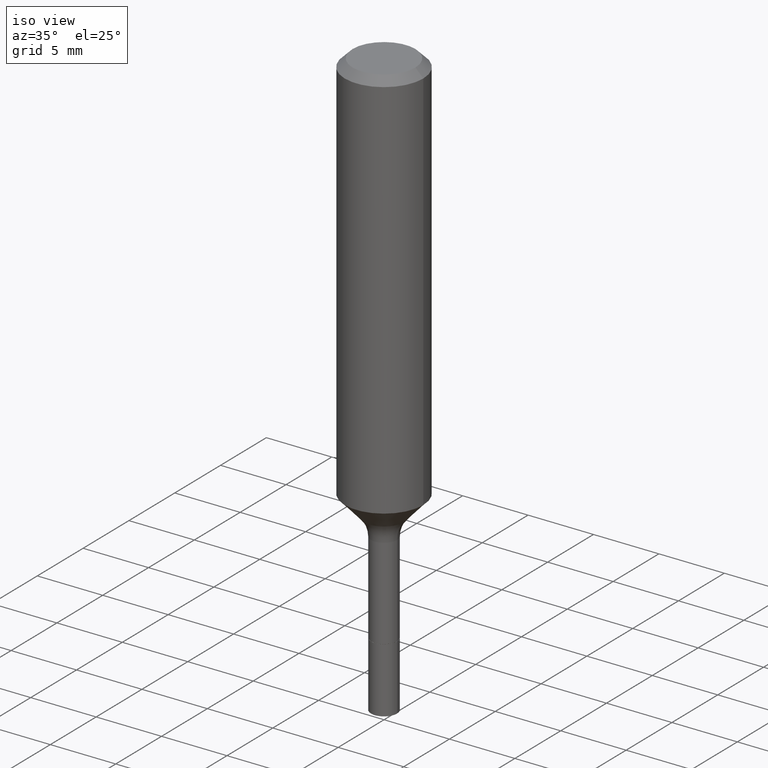
[diagram: clean part render]
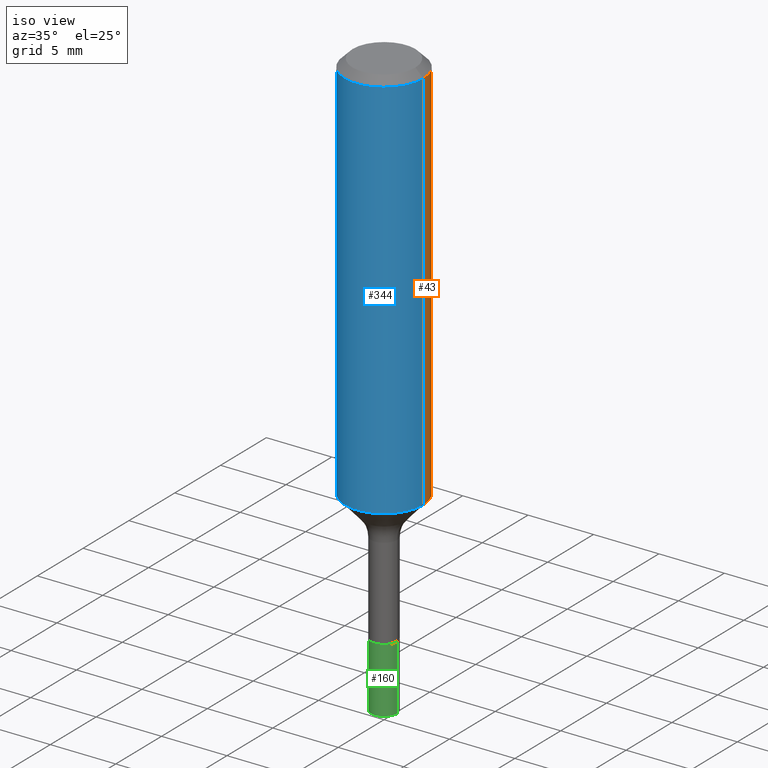
[diagram: same view with three faces highlighted in distinct colors, each labeled with its STEP entity id]
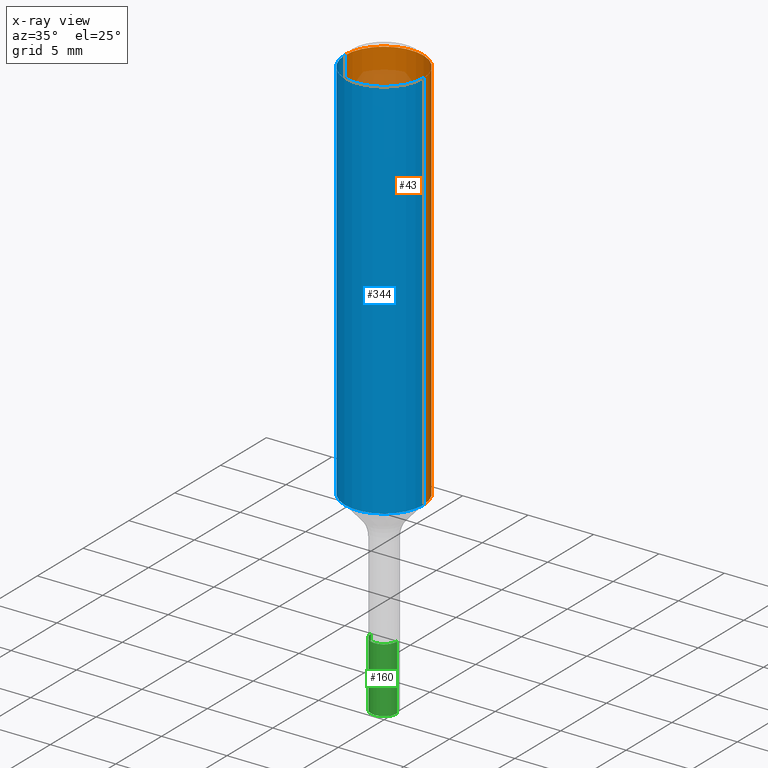
[diagram: x-ray of the same camera — body ghosted, the three highlighted faces saturated]
A machine part, iso view with three faces highlighted in distinct colors.
The next image is the same camera in x-ray (body ghosted, the three faces saturated) — at least one of them is partly hidden behind the body in this view.
Their STEP definitions:

[orange] entity #43 — the highlighted cylindrical surface (partial cylindrical patch) has radius 2.9997 mm, axis along (-0, 0, 1).
#5 = CARTESIAN_POINT ( 'NONE',  ( 0.000000000000000000, 0.000000000000000000, 0.000000000000000000 ) ) ;
#36 = CIRCLE ( 'NONE', #337, 0.1181000000000001493 ) ;
#43 = ADVANCED_FACE ( 'NONE', ( #382 ), #130, .T. ) ;
#44 = VERTEX_POINT ( 'NONE', #330 ) ;
#55 = AXIS2_PLACEMENT_3D ( 'NONE', #5, #446, #209 ) ;
#57 = DIRECTION ( 'NONE',  ( 1.000000000000000000, -6.982962677686264344E-15, 0.000000000000000000 ) ) ;
#78 = CARTESIAN_POINT ( 'NONE',  ( 0.1180999999999999966, -9.071566814582237199E-16, -0.02362000000000013741 ) ) ;
#88 = ORIENTED_EDGE ( 'NONE', *, *, #423, .F. ) ;
#100 = CARTESIAN_POINT ( 'NONE',  ( 2.894007928645242123E-29, -4.131876330531287042E-15, -1.183416415423353740 ) ) ;
#114 = EDGE_CURVE ( 'NONE', #411, #514, #163, .T. ) ;
#130 = CYLINDRICAL_SURFACE ( 'NONE', #55, 0.1181000000000000660 ) ;
#141 = EDGE_CURVE ( 'NONE', #44, #514, #259, .T. ) ;
#163 = CIRCLE ( 'NONE', #322, 0.1180999999999999966 ) ;
#169 = DIRECTION ( 'NONE',  ( -2.445468806185136877E-29, 3.491481338843145188E-15, 1.000000000000000000 ) ) ;
#172 = CARTESIAN_POINT ( 'NONE',  ( 5.776197320209326656E-31, -8.246878922347558061E-17, -0.02362000000000013741 ) ) ;
#192 = CARTESIAN_POINT ( 'NONE',  ( 0.1181000000000001493, -4.956564222766036883E-15, -1.183416415423353740 ) ) ;
#209 = DIRECTION ( 'NONE',  ( 1.000000000000000000, -6.982962677686266711E-15, 4.876176775795936353E-29 ) ) ;
#217 = CARTESIAN_POINT ( 'NONE',  ( 0.1181000000000000660, -8.246878922347485584E-16, 5.758764772215003944E-30 ) ) ;
#235 = ORIENTED_EDGE ( 'NONE', *, *, #141, .T. ) ;
#238 = EDGE_LOOP ( 'NONE', ( #321, #235, #287, #88 ) ) ;
#247 = VERTEX_POINT ( 'NONE', #192 ) ;
#256 = VECTOR ( 'NONE', #368, 39.37007874015748143 ) ;
#259 = LINE ( 'NONE', #424, #256 ) ;
#286 = DIRECTION ( 'NONE',  ( 1.000000000000000000, -6.982962677686266711E-15, 0.000000000000000000 ) ) ;
#287 = ORIENTED_EDGE ( 'NONE', *, *, #114, .F. ) ;
#321 = ORIENTED_EDGE ( 'NONE', *, *, #394, .T. ) ;
#322 = AXIS2_PLACEMENT_3D ( 'NONE', #172, #461, #286 ) ;
#330 = CARTESIAN_POINT ( 'NONE',  ( -0.1181000000000001493, -3.292725359598607662E-15, -1.183416415423353740 ) ) ;
#337 = AXIS2_PLACEMENT_3D ( 'NONE', #100, #425, #57 ) ;
#341 = CARTESIAN_POINT ( 'NONE',  ( -0.1180999999999999966, -1.268021588944702067E-15, -0.02362000000000013741 ) ) ;
#368 = DIRECTION ( 'NONE',  ( -2.445468806185136877E-29, 3.491481338843145188E-15, 1.000000000000000000 ) ) ;
#373 = LINE ( 'NONE', #217, #438 ) ;
#382 = FACE_OUTER_BOUND ( 'NONE', #238, .T. ) ;
#394 = EDGE_CURVE ( 'NONE', #247, #44, #36, .T. ) ;
#411 = VERTEX_POINT ( 'NONE', #78 ) ;
#423 = EDGE_CURVE ( 'NONE', #247, #411, #373, .T. ) ;
#424 = CARTESIAN_POINT ( 'NONE',  ( -0.1181000000000000660, 8.391509709326787887E-16, -5.809262341591047287E-30 ) ) ;
#425 = DIRECTION ( 'NONE',  ( -2.445468806185136597E-29, 3.491481338843145583E-15, 1.000000000000000000 ) ) ;
#438 = VECTOR ( 'NONE', #169, 39.37007874015748143 ) ;
#446 = DIRECTION ( 'NONE',  ( -2.445468806185136597E-29, 3.491481338843145583E-15, 1.000000000000000000 ) ) ;
#461 = DIRECTION ( 'NONE',  ( -2.445468806185136597E-29, 3.491481338843145583E-15, 1.000000000000000000 ) ) ;
#514 = VERTEX_POINT ( 'NONE', #341 ) ;

[blue] entity #344 — the highlighted cylindrical surface (partial cylindrical patch) has radius 2.9997 mm, axis along (-0, 0, 1).
#29 = ORIENTED_EDGE ( 'NONE', *, *, #141, .F. ) ;
#44 = VERTEX_POINT ( 'NONE', #330 ) ;
#76 = EDGE_CURVE ( 'NONE', #514, #411, #426, .T. ) ;
#78 = CARTESIAN_POINT ( 'NONE',  ( 0.1180999999999999966, -9.071566814582237199E-16, -0.02362000000000013741 ) ) ;
#84 = EDGE_CURVE ( 'NONE', #44, #247, #246, .T. ) ;
#85 = EDGE_LOOP ( 'NONE', ( #29, #218, #116, #175 ) ) ;
#116 = ORIENTED_EDGE ( 'NONE', *, *, #423, .T. ) ;
#141 = EDGE_CURVE ( 'NONE', #44, #514, #259, .T. ) ;
#143 = DIRECTION ( 'NONE',  ( 1.000000000000000000, -6.982962677686266711E-15, 4.876176775795936353E-29 ) ) ;
#169 = DIRECTION ( 'NONE',  ( -2.445468806185136877E-29, 3.491481338843145188E-15, 1.000000000000000000 ) ) ;
#175 = ORIENTED_EDGE ( 'NONE', *, *, #76, .F. ) ;
#181 = CYLINDRICAL_SURFACE ( 'NONE', #361, 0.1181000000000000660 ) ;
#192 = CARTESIAN_POINT ( 'NONE',  ( 0.1181000000000001493, -4.956564222766036883E-15, -1.183416415423353740 ) ) ;
#217 = CARTESIAN_POINT ( 'NONE',  ( 0.1181000000000000660, -8.246878922347485584E-16, 5.758764772215003944E-30 ) ) ;
#218 = ORIENTED_EDGE ( 'NONE', *, *, #84, .T. ) ;
#246 = CIRCLE ( 'NONE', #312, 0.1181000000000001493 ) ;
#247 = VERTEX_POINT ( 'NONE', #192 ) ;
#256 = VECTOR ( 'NONE', #368, 39.37007874015748143 ) ;
#259 = LINE ( 'NONE', #424, #256 ) ;
#312 = AXIS2_PLACEMENT_3D ( 'NONE', #497, #518, #406 ) ;
#330 = CARTESIAN_POINT ( 'NONE',  ( -0.1181000000000001493, -3.292725359598607662E-15, -1.183416415423353740 ) ) ;
#341 = CARTESIAN_POINT ( 'NONE',  ( -0.1180999999999999966, -1.268021588944702067E-15, -0.02362000000000013741 ) ) ;
#343 = DIRECTION ( 'NONE',  ( 1.000000000000000000, -6.982962677686266711E-15, 0.000000000000000000 ) ) ;
#344 = ADVANCED_FACE ( 'NONE', ( #393 ), #181, .T. ) ;
#361 = AXIS2_PLACEMENT_3D ( 'NONE', #459, #422, #143 ) ;
#368 = DIRECTION ( 'NONE',  ( -2.445468806185136877E-29, 3.491481338843145188E-15, 1.000000000000000000 ) ) ;
#372 = CARTESIAN_POINT ( 'NONE',  ( 5.776197320209326656E-31, -8.246878922347558061E-17, -0.02362000000000013741 ) ) ;
#373 = LINE ( 'NONE', #217, #438 ) ;
#393 = FACE_OUTER_BOUND ( 'NONE', #85, .T. ) ;
#406 = DIRECTION ( 'NONE',  ( 1.000000000000000000, -6.982962677686264344E-15, 0.000000000000000000 ) ) ;
#411 = VERTEX_POINT ( 'NONE', #78 ) ;
#422 = DIRECTION ( 'NONE',  ( -2.445468806185136597E-29, 3.491481338843145583E-15, 1.000000000000000000 ) ) ;
#423 = EDGE_CURVE ( 'NONE', #247, #411, #373, .T. ) ;
#424 = CARTESIAN_POINT ( 'NONE',  ( -0.1181000000000000660, 8.391509709326787887E-16, -5.809262341591047287E-30 ) ) ;
#426 = CIRCLE ( 'NONE', #472, 0.1180999999999999966 ) ;
#438 = VECTOR ( 'NONE', #169, 39.37007874015748143 ) ;
#459 = CARTESIAN_POINT ( 'NONE',  ( 0.000000000000000000, 0.000000000000000000, 0.000000000000000000 ) ) ;
#472 = AXIS2_PLACEMENT_3D ( 'NONE', #372, #495, #343 ) ;
#495 = DIRECTION ( 'NONE',  ( -2.445468806185136597E-29, 3.491481338843145583E-15, 1.000000000000000000 ) ) ;
#497 = CARTESIAN_POINT ( 'NONE',  ( 2.894007928645242123E-29, -4.131876330531287042E-15, -1.183416415423353740 ) ) ;
#514 = VERTEX_POINT ( 'NONE', #341 ) ;
#518 = DIRECTION ( 'NONE',  ( -2.445468806185136597E-29, 3.491481338843145583E-15, 1.000000000000000000 ) ) ;

[green] entity #160 — the highlighted cylindrical surface (edge-blend (fillet) strip) has radius 0.9919 mm, axis along (-0, 0, 1).
#6 = ORIENTED_EDGE ( 'NONE', *, *, #101, .T. ) ;
#14 = DIRECTION ( 'NONE',  ( 1.000000000000000000, -6.982962677686272233E-15, 0.000000000000000000 ) ) ;
#26 = DIRECTION ( 'NONE',  ( -2.445468806185136597E-29, 3.491481338843145583E-15, 1.000000000000000000 ) ) ;
#49 = CARTESIAN_POINT ( 'NONE',  ( -0.03905000000000011240, -5.566225378507452853E-15, -1.771700000000000053 ) ) ;
#58 = DIRECTION ( 'NONE',  ( 1.000000000000000000, -6.982962677686258033E-15, 0.000000000000000000 ) ) ;
#63 = AXIS2_PLACEMENT_3D ( 'NONE', #223, #137, #14 ) ;
#72 = ORIENTED_EDGE ( 'NONE', *, *, #182, .F. ) ;
#74 = VERTEX_POINT ( 'NONE', #49 ) ;
#86 = CYLINDRICAL_SURFACE ( 'NONE', #395, 0.03905000000000004995 ) ;
#98 = CARTESIAN_POINT ( 'NONE',  ( 0.03905000000000011240, -6.458542180592050983E-15, -1.771700000000000053 ) ) ;
#101 = EDGE_CURVE ( 'NONE', #132, #517, #248, .T. ) ;
#102 = DIRECTION ( 'NONE',  ( 1.000000000000000000, -6.982962677686269077E-15, 0.000000000000000000 ) ) ;
#127 = FACE_OUTER_BOUND ( 'NONE', #240, .T. ) ;
#132 = VERTEX_POINT ( 'NONE', #98 ) ;
#137 = DIRECTION ( 'NONE',  ( -2.445468806185136597E-29, 3.491481338843145583E-15, 1.000000000000000000 ) ) ;
#160 = ADVANCED_FACE ( 'NONE', ( #127 ), #86, .T. ) ;
#179 = VECTOR ( 'NONE', #349, 39.37007874015748143 ) ;
#182 = EDGE_CURVE ( 'NONE', #325, #517, #234, .T. ) ;
#208 = ORIENTED_EDGE ( 'NONE', *, *, #508, .T. ) ;
#210 = ORIENTED_EDGE ( 'NONE', *, *, #249, .F. ) ;
#223 = CARTESIAN_POINT ( 'NONE',  ( 4.332637083918206427E-29, -6.185857488028401081E-15, -1.771700000000000053 ) ) ;
#225 = VECTOR ( 'NONE', #299, 39.37007874015748143 ) ;
#234 = CIRCLE ( 'NONE', #516, 0.03904999999999998750 ) ;
#240 = EDGE_LOOP ( 'NONE', ( #210, #208, #6, #72 ) ) ;
#248 = LINE ( 'NONE', #302, #225 ) ;
#249 = EDGE_CURVE ( 'NONE', #74, #325, #300, .T. ) ;
#265 = CARTESIAN_POINT ( 'NONE',  ( 3.853325197905920174E-29, -5.501527145615144861E-15, -1.575700000000000101 ) ) ;
#299 = DIRECTION ( 'NONE',  ( -2.445468806185136877E-29, 3.491481338843145188E-15, 1.000000000000000000 ) ) ;
#300 = LINE ( 'NONE', #463, #179 ) ;
#302 = CARTESIAN_POINT ( 'NONE',  ( 0.03905000000000004995, -5.774211838178793974E-15, -1.575700000000000101 ) ) ;
#325 = VERTEX_POINT ( 'NONE', #432 ) ;
#349 = DIRECTION ( 'NONE',  ( -2.445468806185136877E-29, 3.491481338843145188E-15, 1.000000000000000000 ) ) ;
#395 = AXIS2_PLACEMENT_3D ( 'NONE', #412, #399, #58 ) ;
#399 = DIRECTION ( 'NONE',  ( -2.445468806185136597E-29, 3.491481338843145583E-15, 1.000000000000000000 ) ) ;
#403 = CIRCLE ( 'NONE', #63, 0.03905000000000011240 ) ;
#412 = CARTESIAN_POINT ( 'NONE',  ( 3.853325197905920174E-29, -5.501527145615144861E-15, -1.575700000000000101 ) ) ;
#432 = CARTESIAN_POINT ( 'NONE',  ( -0.03904999999999998750, -5.566225378507453642E-15, -1.575700000000000101 ) ) ;
#463 = CARTESIAN_POINT ( 'NONE',  ( -0.03905000000000004995, -5.224060207300825532E-15, -1.575700000000000101 ) ) ;
#494 = CARTESIAN_POINT ( 'NONE',  ( 0.03904999999999998750, -5.774211838178793974E-15, -1.575700000000000101 ) ) ;
#508 = EDGE_CURVE ( 'NONE', #74, #132, #403, .T. ) ;
#516 = AXIS2_PLACEMENT_3D ( 'NONE', #265, #26, #102 ) ;
#517 = VERTEX_POINT ( 'NONE', #494 ) ;